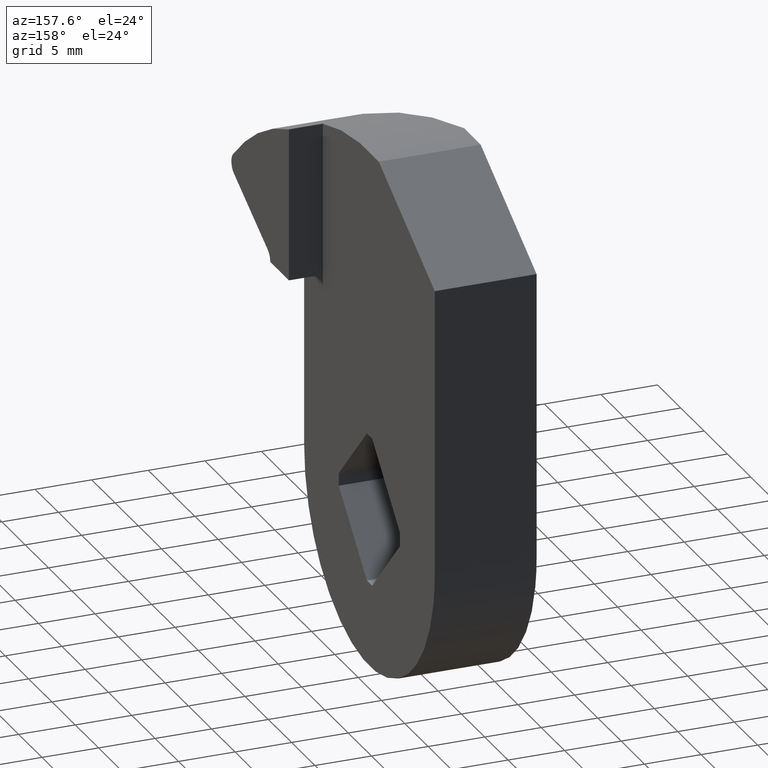
[diagram: clean part render]
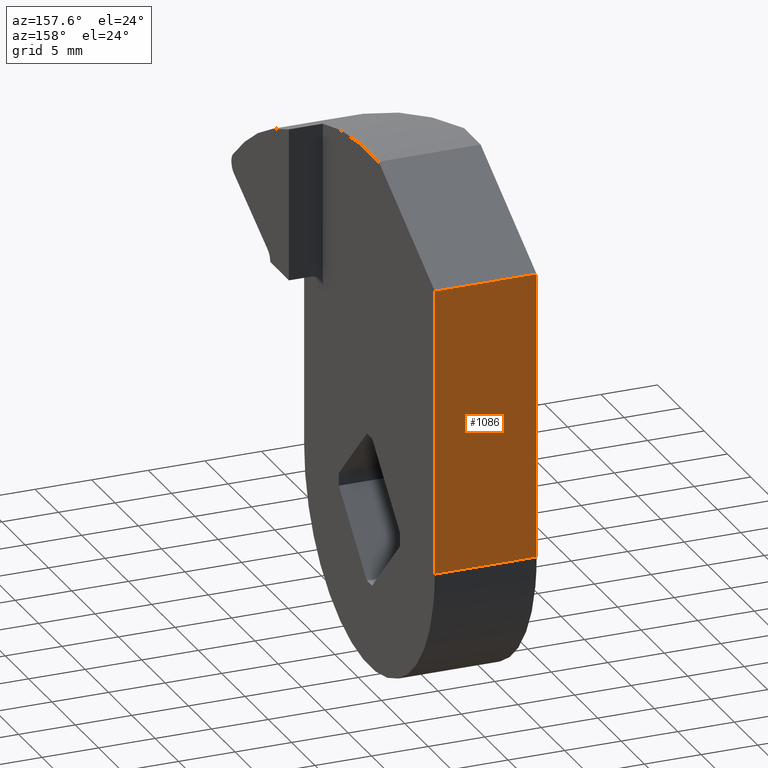
[diagram: same view with one face highlighted and labeled with its STEP entity id]
A machine part, auxiliary view. The second image highlights one B-rep face of the part: STEP entity #1086.
In plain terms, the highlighted face is a freeform B-spline surface patch.
Its self-contained STEP definition (entity closure, byte-faithful):
#917=CARTESIAN_POINT('',(1.110223E-013,13.999999999982441,25.300000000086751));
#918=VERTEX_POINT('',#917);
#924=CARTESIAN_POINT('',(1.110223E-013,14.0,-2.598191E-011));
#925=VERTEX_POINT('',#924);
#926=CARTESIAN_POINT('',(1.110223E-013,13.999999999982441,25.300000000086751));
#927=CARTESIAN_POINT('',(1.110223E-013,14.0,-2.598191E-011));
#928=QUASI_UNIFORM_CURVE('',1,(#926,#927),.UNSPECIFIED.,.F.,.U.);
#929=EDGE_CURVE('',#918,#925,#928,.T.);
#981=CARTESIAN_POINT('',(9.000000000000119,14.0,-2.598191E-011));
#982=VERTEX_POINT('',#981);
#998=CARTESIAN_POINT('',(9.000000000000119,13.999999999982441,25.300000000086751));
#999=VERTEX_POINT('',#998);
#1000=CARTESIAN_POINT('',(9.000000000000119,13.999999999982441,25.300000000086751));
#1001=CARTESIAN_POINT('',(9.000000000000119,14.0,-2.598191E-011));
#1002=QUASI_UNIFORM_CURVE('',1,(#1000,#1001),.UNSPECIFIED.,.F.,.U.);
#1003=EDGE_CURVE('',#999,#982,#1002,.T.);
#1057=CARTESIAN_POINT('',(9.000000000000119,14.0,-2.598191E-011));
#1058=CARTESIAN_POINT('',(1.110223E-013,14.0,-2.598191E-011));
#1059=QUASI_UNIFORM_CURVE('',1,(#1057,#1058),.UNSPECIFIED.,.F.,.U.);
#1060=EDGE_CURVE('',#982,#925,#1059,.T.);
#1071=CARTESIAN_POINT('',(-0.449549982556143,14.0,-1.263734860605933));
#1072=CARTESIAN_POINT('',(-0.449549982556143,14.0,26.563733729668581));
#1073=CARTESIAN_POINT('',(9.449550223955185,14.0,-1.263734860605933));
#1074=CARTESIAN_POINT('',(9.449550223955185,14.0,26.563733729668581));
#1075=B_SPLINE_SURFACE_WITH_KNOTS('',1,1,((#1071,#1073),(#1072,#1074)),.UNSPECIFIED.,.F.,.F.,.U.,(2,2),(2,2),(0.0,27.827468590274510),(0.0,9.899100206511330),.UNSPECIFIED.);
#1076=ORIENTED_EDGE('',*,*,#929,.F.);
#1077=CARTESIAN_POINT('',(9.000000000000119,13.999999999982441,25.300000000086751));
#1078=CARTESIAN_POINT('',(1.110223E-013,13.999999999982441,25.300000000086751));
#1079=QUASI_UNIFORM_CURVE('',1,(#1077,#1078),.UNSPECIFIED.,.F.,.U.);
#1080=EDGE_CURVE('',#999,#918,#1079,.T.);
#1081=ORIENTED_EDGE('',*,*,#1080,.F.);
#1082=ORIENTED_EDGE('',*,*,#1003,.T.);
#1083=ORIENTED_EDGE('',*,*,#1060,.T.);
#1084=EDGE_LOOP('',(#1076,#1081,#1082,#1083));
#1085=FACE_OUTER_BOUND('',#1084,.T.);
#1086=ADVANCED_FACE('',(#1085),#1075,.T.);